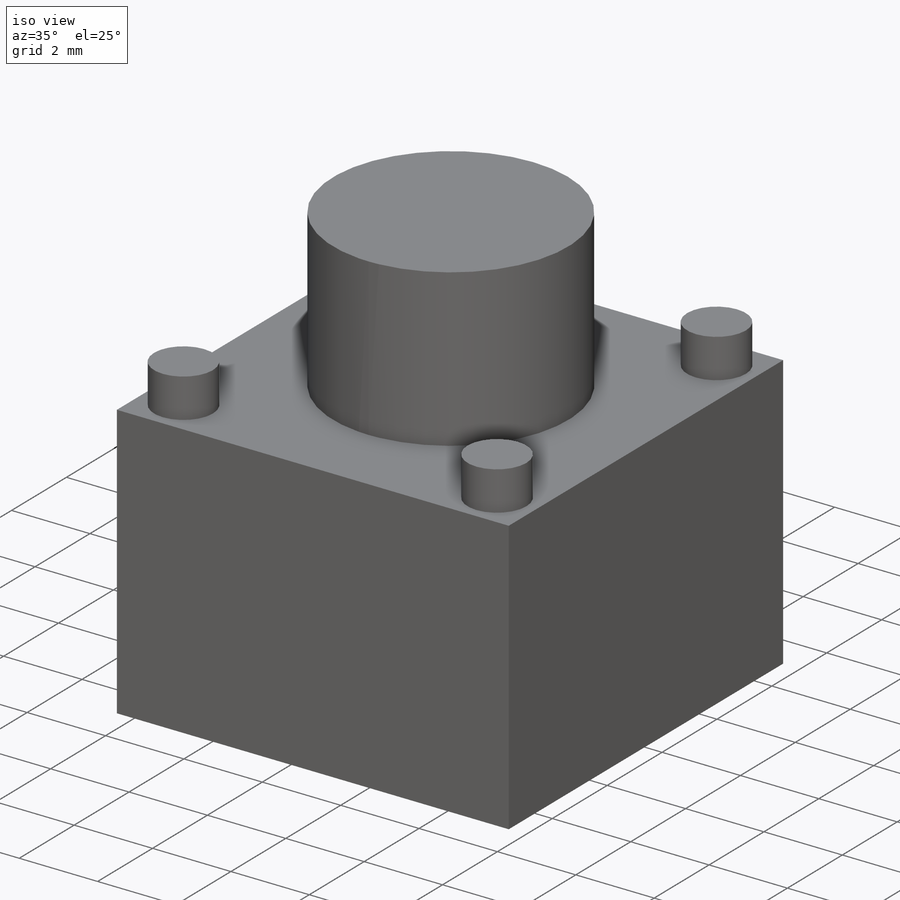
[diagram: iso view]
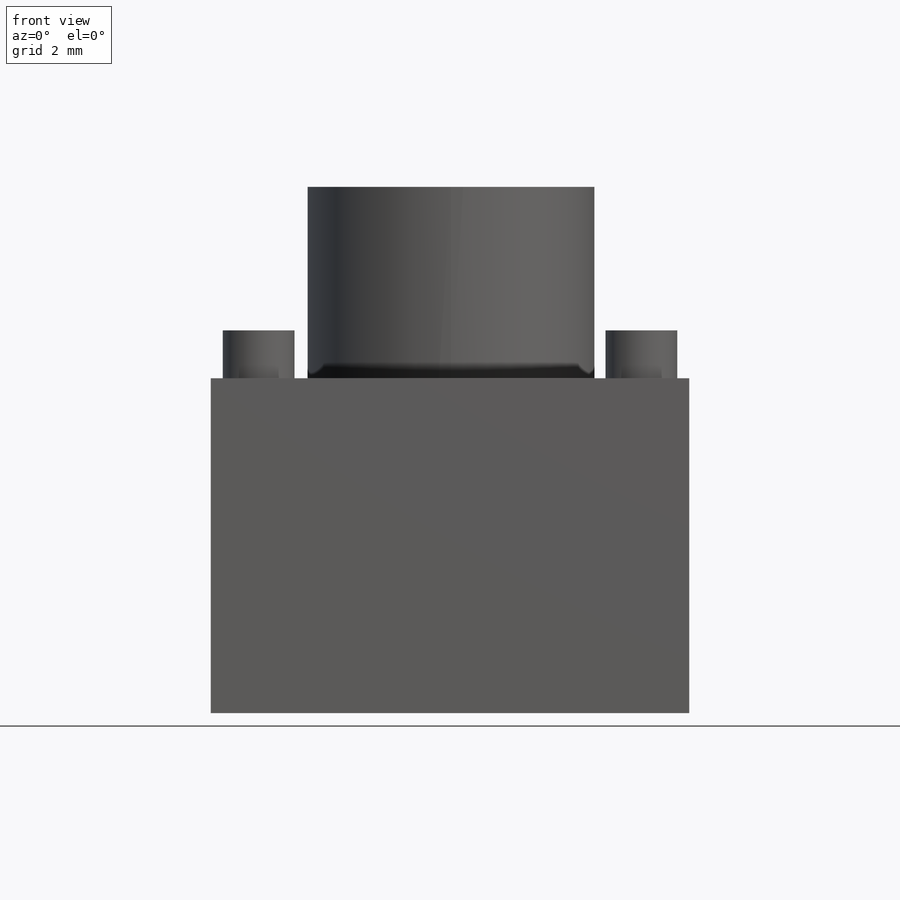
[diagram: front view]
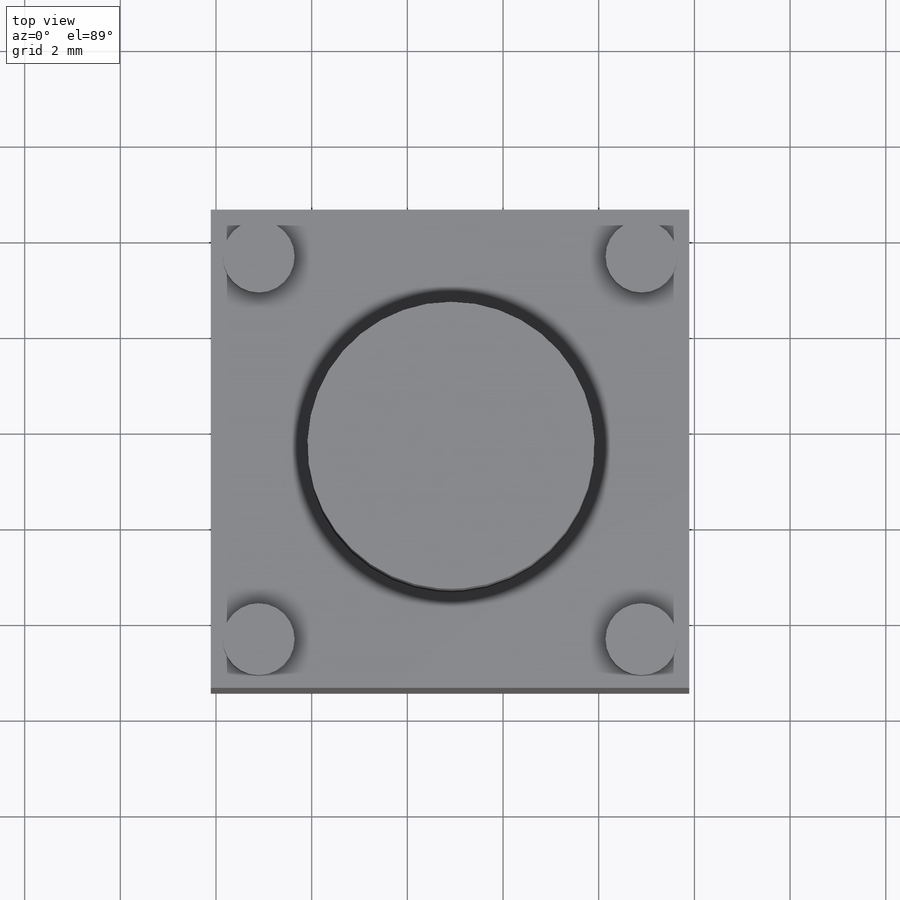
[diagram: top view]
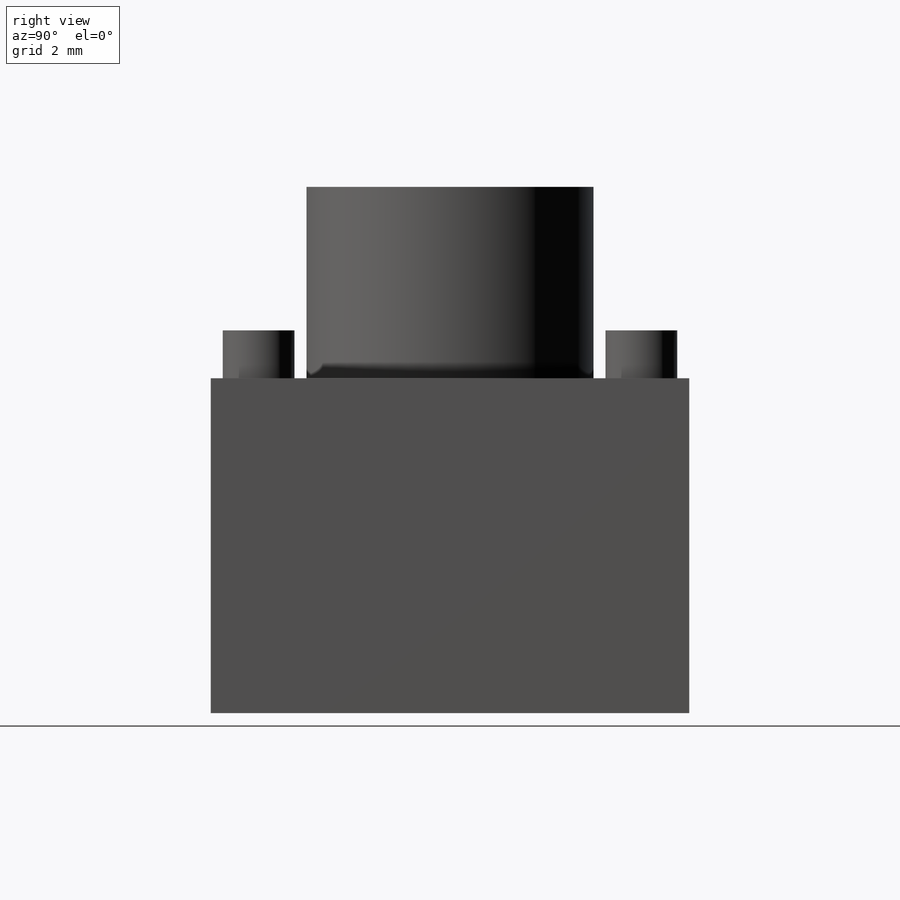
[diagram: right view]
SOLIDWORKS PART (.sldprt)
format: sldprt  version: not decoded by parser v0  size: 183,808 bytes
history: native  units: mm
features: sketch x4, extrude x3, material x1 (+13 scaffold rows collapsed)
feature tree (21):
  scaffold x13  (default folders/planes/origin — collapsed)
  material  "Material <not specified>"
  sketch  "Sketch1"  dims[D1=10.0mm D2=10.0mm]
  extrude  "Boss-Extrude1"  Depth=7mm
  sketch  "Sketch2"  dims[D1=2.0mm D2=2.0mm D3=3.0mm]
  sketch  "Sketch3"  dims[c1.D1=6.0mm c1.D2=1.5mm c1.D3=1.5mm c1.D4=1.5mm c1.D5=1.5mm c1.D6=1.5mm c1.D8=1.5mm c1.D10=1.5mm c1.D12=1.5mm c1.D13=1.5mm c1.D14=6.0mm c2.D6=1.0mm c2.D7=1.0mm c2.D8=1.0mm c2.D9=1.0mm c2.1=1.0mm c2.D10=1.0mm c2.D11=1.0mm c2.D12=1.0mm c2.D13=1.0mm c2.D14=5.0mm]
  extrude  "Boss-Extrude2"  Depth=1mm
  sketch  "Sketch4"  dims[D1=6.0mm D2=5.0mm]
  extrude  "Boss-Extrude4"  Depth=4mm
decode coverage: 7 of 7 modeling features carry decoded parameters
note: suppression state not decoded; provenance and decode notes live in map.json
